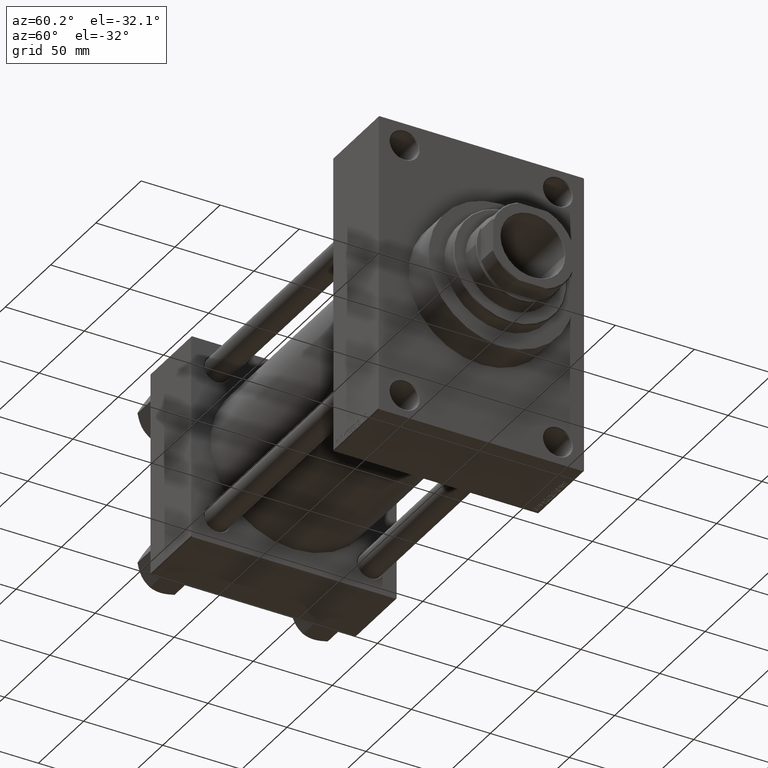
[diagram: clean part render]
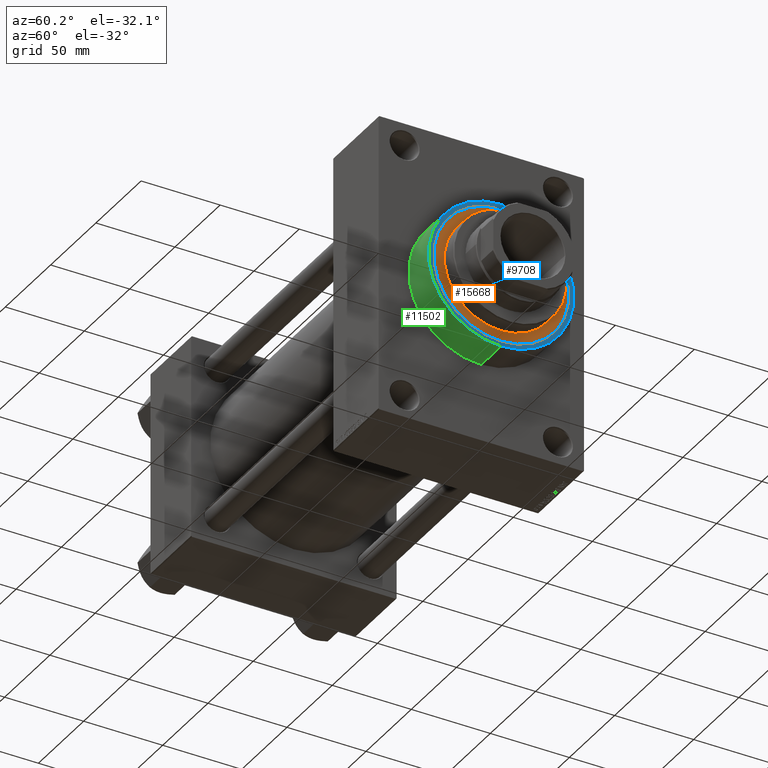
[diagram: same view with three faces highlighted in distinct colors, each labeled with its STEP entity id]
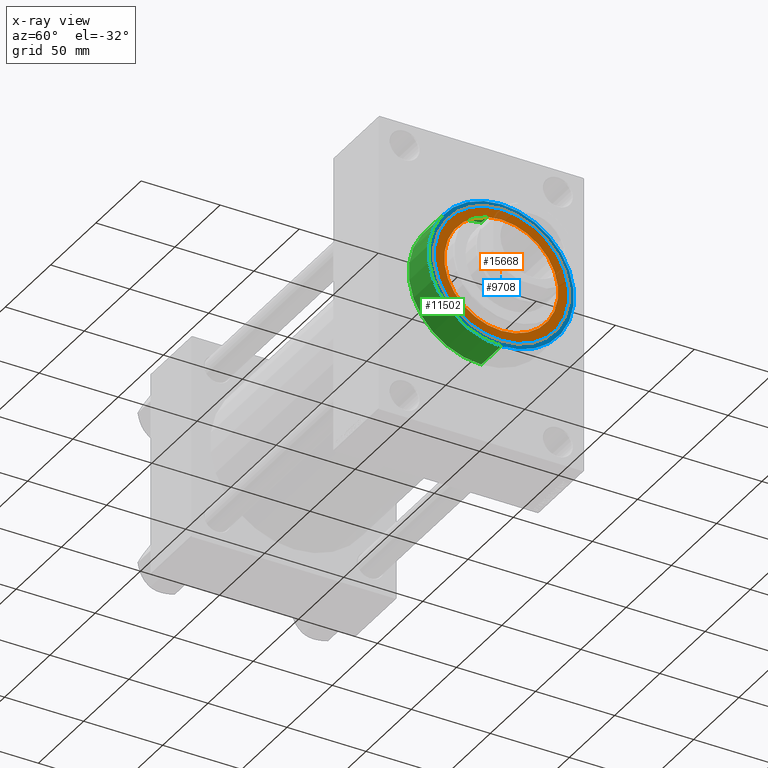
[diagram: x-ray of the same camera — body ghosted, the three highlighted faces saturated]
A machine part, auxiliary view with three faces highlighted in distinct colors.
The next image is the same camera in x-ray (body ghosted, the three faces saturated) — at least one of them is partly hidden behind the body in this view.
Their STEP definitions:

[orange] entity #15668 — the highlighted planar face has unit normal (1, -0, -0).
#206 = CARTESIAN_POINT ( 'NONE',  ( 0.000000000000000000, 0.000000000000000000, 43.25999999999999801 ) ) ;
#1359 = DIRECTION ( 'NONE',  ( 0.000000000000000000, 0.000000000000000000, 1.000000000000000000 ) ) ;
#2035 = VERTEX_POINT ( 'NONE', #11271 ) ;
#2351 = VERTEX_POINT ( 'NONE', #7347 ) ;
#4021 = DIRECTION ( 'NONE',  ( 0.000000000000000000, 0.000000000000000000, 1.000000000000000000 ) ) ;
#4903 = CARTESIAN_POINT ( 'NONE',  ( 0.000000000000000000, 0.000000000000000000, 43.25999999999999801 ) ) ;
#6809 = AXIS2_PLACEMENT_3D ( 'NONE', #206, #1359, #19716 ) ;
#7347 = CARTESIAN_POINT ( 'NONE',  ( 42.75000000000000000, 5.235365066354935472E-15, 43.25999999999999801 ) ) ;
#7766 = EDGE_CURVE ( 'NONE', #2351, #36278, #44357, .T. ) ;
#9055 = CARTESIAN_POINT ( 'NONE',  ( 0.000000000000000000, 0.000000000000000000, 43.25999999999999801 ) ) ;
#10599 = CIRCLE ( 'NONE', #19878, 36.00000000000000000 ) ;
#11271 = CARTESIAN_POINT ( 'NONE',  ( 36.00000000000000000, 4.408728476930470856E-15, 43.25999999999999801 ) ) ;
#11814 = EDGE_LOOP ( 'NONE', ( #29691, #13340 ) ) ;
#12761 = EDGE_CURVE ( 'NONE', #2035, #42007, #20599, .T. ) ;
#13340 = ORIENTED_EDGE ( 'NONE', *, *, #12761, .F. ) ;
#15668 = ADVANCED_FACE ( 'NONE', ( #16566, #45554 ), #33270, .T. ) ;
#16019 = DIRECTION ( 'NONE',  ( 0.000000000000000000, 0.000000000000000000, 1.000000000000000000 ) ) ;
#16566 = FACE_BOUND ( 'NONE', #11814, .T. ) ;
#16784 = DIRECTION ( 'NONE',  ( 1.000000000000000000, 0.000000000000000000, 0.000000000000000000 ) ) ;
#16943 = ORIENTED_EDGE ( 'NONE', *, *, #43167, .T. ) ;
#19105 = AXIS2_PLACEMENT_3D ( 'NONE', #9055, #19939, #16784 ) ;
#19716 = DIRECTION ( 'NONE',  ( 1.000000000000000000, 0.000000000000000000, -0.000000000000000000 ) ) ;
#19878 = AXIS2_PLACEMENT_3D ( 'NONE', #4903, #16019, #47108 ) ;
#19939 = DIRECTION ( 'NONE',  ( 0.000000000000000000, 0.000000000000000000, 1.000000000000000000 ) ) ;
#20599 = CIRCLE ( 'NONE', #38340, 36.00000000000000000 ) ;
#21785 = DIRECTION ( 'NONE',  ( 0.000000000000000000, 0.000000000000000000, 1.000000000000000000 ) ) ;
#28138 = CARTESIAN_POINT ( 'NONE',  ( -42.75000000000000000, 0.000000000000000000, 43.25999999999999801 ) ) ;
#29641 = EDGE_LOOP ( 'NONE', ( #16943, #35485 ) ) ;
#29691 = ORIENTED_EDGE ( 'NONE', *, *, #43436, .F. ) ;
#33270 = PLANE ( 'NONE',  #6809 ) ;
#33726 = DIRECTION ( 'NONE',  ( 1.000000000000000000, 0.000000000000000000, 0.000000000000000000 ) ) ;
#34902 = CARTESIAN_POINT ( 'NONE',  ( -36.00000000000000000, 0.000000000000000000, 43.25999999999999801 ) ) ;
#35485 = ORIENTED_EDGE ( 'NONE', *, *, #7766, .T. ) ;
#36278 = VERTEX_POINT ( 'NONE', #28138 ) ;
#38340 = AXIS2_PLACEMENT_3D ( 'NONE', #44599, #4021, #33726 ) ;
#38371 = CIRCLE ( 'NONE', #19105, 42.75000000000000000 ) ;
#39726 = AXIS2_PLACEMENT_3D ( 'NONE', #47375, #21785, #40129 ) ;
#40129 = DIRECTION ( 'NONE',  ( 1.000000000000000000, 0.000000000000000000, 0.000000000000000000 ) ) ;
#42007 = VERTEX_POINT ( 'NONE', #34902 ) ;
#43167 = EDGE_CURVE ( 'NONE', #36278, #2351, #38371, .T. ) ;
#43436 = EDGE_CURVE ( 'NONE', #42007, #2035, #10599, .T. ) ;
#44357 = CIRCLE ( 'NONE', #39726, 42.75000000000000000 ) ;
#44599 = CARTESIAN_POINT ( 'NONE',  ( 0.000000000000000000, 0.000000000000000000, 43.25999999999999801 ) ) ;
#45554 = FACE_OUTER_BOUND ( 'NONE', #29641, .T. ) ;
#47108 = DIRECTION ( 'NONE',  ( 1.000000000000000000, 0.000000000000000000, 0.000000000000000000 ) ) ;
#47375 = CARTESIAN_POINT ( 'NONE',  ( 0.000000000000000000, 0.000000000000000000, 43.25999999999999801 ) ) ;

[blue] entity #9708 — the highlighted planar face has unit normal (1, 0, 0).
#2278 = CIRCLE ( 'NONE', #33915, 46.00000000000000000 ) ;
#4461 = CARTESIAN_POINT ( 'NONE',  ( 274.0000000000000000, 0.000000000000000000, 0.000000000000000000 ) ) ;
#4913 = ORIENTED_EDGE ( 'NONE', *, *, #22104, .T. ) ;
#4945 = DIRECTION ( 'NONE',  ( 1.000000000000000000, 0.000000000000000000, 0.000000000000000000 ) ) ;
#5179 = PLANE ( 'NONE',  #21304 ) ;
#7493 = CARTESIAN_POINT ( 'NONE',  ( 274.0000000000000000, 0.000000000000000000, -42.75000000000000000 ) ) ;
#9708 = ADVANCED_FACE ( 'NONE', ( #22813, #31007 ), #5179, .T. ) ;
#9992 = VERTEX_POINT ( 'NONE', #41583 ) ;
#12991 = EDGE_LOOP ( 'NONE', ( #4913, #15229 ) ) ;
#15185 = ORIENTED_EDGE ( 'NONE', *, *, #35096, .F. ) ;
#15229 = ORIENTED_EDGE ( 'NONE', *, *, #34513, .T. ) ;
#15740 = EDGE_CURVE ( 'NONE', #43411, #24893, #36106, .T. ) ;
#16636 = AXIS2_PLACEMENT_3D ( 'NONE', #27598, #24210, #38468 ) ;
#17619 = AXIS2_PLACEMENT_3D ( 'NONE', #34669, #22170, #41012 ) ;
#17693 = DIRECTION ( 'NONE',  ( 0.000000000000000000, 0.000000000000000000, -1.000000000000000000 ) ) ;
#20981 = ORIENTED_EDGE ( 'NONE', *, *, #15740, .F. ) ;
#21019 = EDGE_LOOP ( 'NONE', ( #15185, #20981 ) ) ;
#21304 = AXIS2_PLACEMENT_3D ( 'NONE', #4461, #4945, #23766 ) ;
#22104 = EDGE_CURVE ( 'NONE', #33143, #9992, #2278, .T. ) ;
#22170 = DIRECTION ( 'NONE',  ( 1.000000000000000000, 0.000000000000000000, 0.000000000000000000 ) ) ;
#22813 = FACE_BOUND ( 'NONE', #21019, .T. ) ;
#23766 = DIRECTION ( 'NONE',  ( 0.000000000000000000, 0.000000000000000000, -1.000000000000000000 ) ) ;
#24210 = DIRECTION ( 'NONE',  ( 1.000000000000000000, 0.000000000000000000, 0.000000000000000000 ) ) ;
#24300 = CIRCLE ( 'NONE', #33562, 42.75000000000000000 ) ;
#24893 = VERTEX_POINT ( 'NONE', #7493 ) ;
#25252 = CARTESIAN_POINT ( 'NONE',  ( 274.0000000000000000, 0.000000000000000000, 0.000000000000000000 ) ) ;
#25382 = CARTESIAN_POINT ( 'NONE',  ( 274.0000000000000000, 0.000000000000000000, 0.000000000000000000 ) ) ;
#27598 = CARTESIAN_POINT ( 'NONE',  ( 274.0000000000000000, 0.000000000000000000, 0.000000000000000000 ) ) ;
#27821 = CARTESIAN_POINT ( 'NONE',  ( 274.0000000000000000, 5.235365066354935472E-15, 42.75000000000000000 ) ) ;
#29401 = CARTESIAN_POINT ( 'NONE',  ( 274.0000000000000000, 0.000000000000000000, 46.00000000000000000 ) ) ;
#31007 = FACE_OUTER_BOUND ( 'NONE', #12991, .T. ) ;
#33107 = DIRECTION ( 'NONE',  ( 1.000000000000000000, 0.000000000000000000, 0.000000000000000000 ) ) ;
#33143 = VERTEX_POINT ( 'NONE', #29401 ) ;
#33562 = AXIS2_PLACEMENT_3D ( 'NONE', #25252, #39053, #46773 ) ;
#33915 = AXIS2_PLACEMENT_3D ( 'NONE', #25382, #33107, #17693 ) ;
#34513 = EDGE_CURVE ( 'NONE', #9992, #33143, #46670, .T. ) ;
#34669 = CARTESIAN_POINT ( 'NONE',  ( 274.0000000000000000, 0.000000000000000000, 0.000000000000000000 ) ) ;
#35096 = EDGE_CURVE ( 'NONE', #24893, #43411, #24300, .T. ) ;
#36106 = CIRCLE ( 'NONE', #17619, 42.75000000000000000 ) ;
#38468 = DIRECTION ( 'NONE',  ( 0.000000000000000000, 0.000000000000000000, -1.000000000000000000 ) ) ;
#39053 = DIRECTION ( 'NONE',  ( 1.000000000000000000, 0.000000000000000000, 0.000000000000000000 ) ) ;
#41012 = DIRECTION ( 'NONE',  ( 0.000000000000000000, 0.000000000000000000, -1.000000000000000000 ) ) ;
#41583 = CARTESIAN_POINT ( 'NONE',  ( 274.0000000000000000, 5.633375276077824704E-15, -46.00000000000000000 ) ) ;
#43411 = VERTEX_POINT ( 'NONE', #27821 ) ;
#46670 = CIRCLE ( 'NONE', #16636, 46.00000000000000000 ) ;
#46773 = DIRECTION ( 'NONE',  ( 0.000000000000000000, 0.000000000000000000, -1.000000000000000000 ) ) ;

[green] entity #11502 — the highlighted cylindrical surface (partial cylindrical patch) has radius 46 mm, axis along (-1, -0, -0).
#131 = ORIENTED_EDGE ( 'NONE', *, *, #22104, .F. ) ;
#1677 = ORIENTED_EDGE ( 'NONE', *, *, #18152, .F. ) ;
#2278 = CIRCLE ( 'NONE', #33915, 46.00000000000000000 ) ;
#5357 = VECTOR ( 'NONE', #43628, 1000.000000000000000 ) ;
#7419 = EDGE_CURVE ( 'NONE', #36414, #26268, #42058, .T. ) ;
#9724 = VECTOR ( 'NONE', #26007, 1000.000000000000000 ) ;
#9992 = VERTEX_POINT ( 'NONE', #41583 ) ;
#10435 = AXIS2_PLACEMENT_3D ( 'NONE', #47435, #33179, #21380 ) ;
#10454 = EDGE_LOOP ( 'NONE', ( #1677, #131, #35880, #31258 ) ) ;
#11502 = ADVANCED_FACE ( 'NONE', ( #13450 ), #34951, .T. ) ;
#13450 = FACE_OUTER_BOUND ( 'NONE', #10454, .T. ) ;
#17693 = DIRECTION ( 'NONE',  ( 0.000000000000000000, 0.000000000000000000, -1.000000000000000000 ) ) ;
#18152 = EDGE_CURVE ( 'NONE', #9992, #26268, #29373, .T. ) ;
#18542 = CARTESIAN_POINT ( 'NONE',  ( 274.0000000000000000, 0.000000000000000000, 46.00000000000000000 ) ) ;
#21380 = DIRECTION ( 'NONE',  ( 0.000000000000000000, 0.000000000000000000, -1.000000000000000000 ) ) ;
#22104 = EDGE_CURVE ( 'NONE', #33143, #9992, #2278, .T. ) ;
#25382 = CARTESIAN_POINT ( 'NONE',  ( 274.0000000000000000, 0.000000000000000000, 0.000000000000000000 ) ) ;
#26007 = DIRECTION ( 'NONE',  ( -1.000000000000000000, -0.000000000000000000, -0.000000000000000000 ) ) ;
#26268 = VERTEX_POINT ( 'NONE', #26532 ) ;
#26532 = CARTESIAN_POINT ( 'NONE',  ( 252.0000000000000000, 5.633375276077824704E-15, -46.00000000000000000 ) ) ;
#28170 = DIRECTION ( 'NONE',  ( 0.000000000000000000, 0.000000000000000000, 1.000000000000000000 ) ) ;
#29373 = LINE ( 'NONE', #40711, #5357 ) ;
#29401 = CARTESIAN_POINT ( 'NONE',  ( 274.0000000000000000, 0.000000000000000000, 46.00000000000000000 ) ) ;
#31258 = ORIENTED_EDGE ( 'NONE', *, *, #7419, .T. ) ;
#33107 = DIRECTION ( 'NONE',  ( 1.000000000000000000, 0.000000000000000000, 0.000000000000000000 ) ) ;
#33143 = VERTEX_POINT ( 'NONE', #29401 ) ;
#33179 = DIRECTION ( 'NONE',  ( 1.000000000000000000, 0.000000000000000000, 0.000000000000000000 ) ) ;
#33915 = AXIS2_PLACEMENT_3D ( 'NONE', #25382, #33107, #17693 ) ;
#34715 = DIRECTION ( 'NONE',  ( -1.000000000000000000, -0.000000000000000000, -0.000000000000000000 ) ) ;
#34951 = CYLINDRICAL_SURFACE ( 'NONE', #47518, 46.00000000000000000 ) ;
#35880 = ORIENTED_EDGE ( 'NONE', *, *, #40597, .T. ) ;
#36414 = VERTEX_POINT ( 'NONE', #37036 ) ;
#37036 = CARTESIAN_POINT ( 'NONE',  ( 252.0000000000000000, 0.000000000000000000, 46.00000000000000000 ) ) ;
#37361 = LINE ( 'NONE', #18542, #9724 ) ;
#40597 = EDGE_CURVE ( 'NONE', #33143, #36414, #37361, .T. ) ;
#40711 = CARTESIAN_POINT ( 'NONE',  ( 274.0000000000000000, 5.633375276077824704E-15, -46.00000000000000000 ) ) ;
#41583 = CARTESIAN_POINT ( 'NONE',  ( 274.0000000000000000, 5.633375276077824704E-15, -46.00000000000000000 ) ) ;
#42058 = CIRCLE ( 'NONE', #10435, 46.00000000000000000 ) ;
#42666 = CARTESIAN_POINT ( 'NONE',  ( 274.0000000000000000, 0.000000000000000000, 0.000000000000000000 ) ) ;
#43628 = DIRECTION ( 'NONE',  ( -1.000000000000000000, -0.000000000000000000, -0.000000000000000000 ) ) ;
#47435 = CARTESIAN_POINT ( 'NONE',  ( 252.0000000000000000, 0.000000000000000000, 0.000000000000000000 ) ) ;
#47518 = AXIS2_PLACEMENT_3D ( 'NONE', #42666, #34715, #28170 ) ;